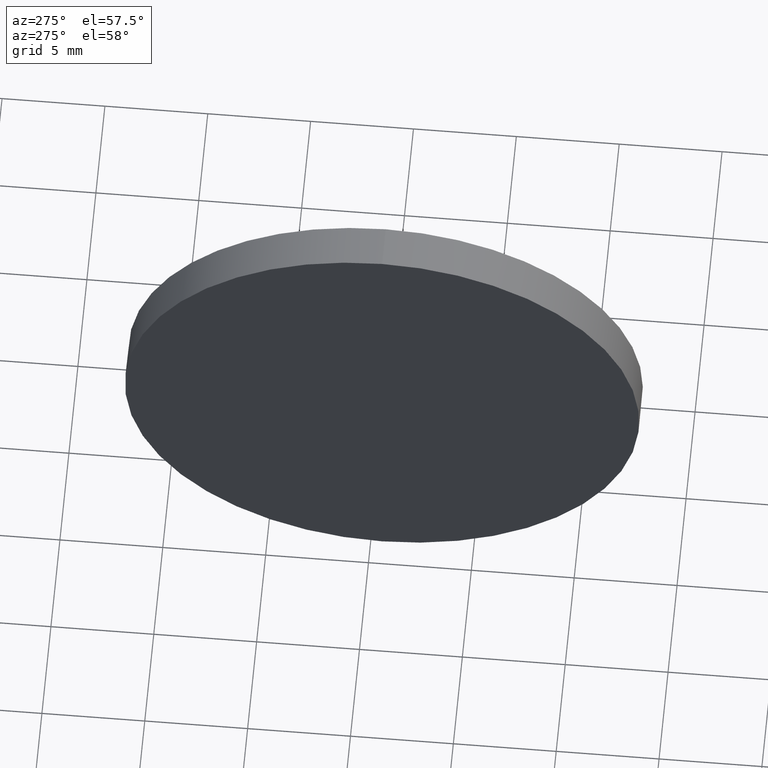
[diagram: clean part render]
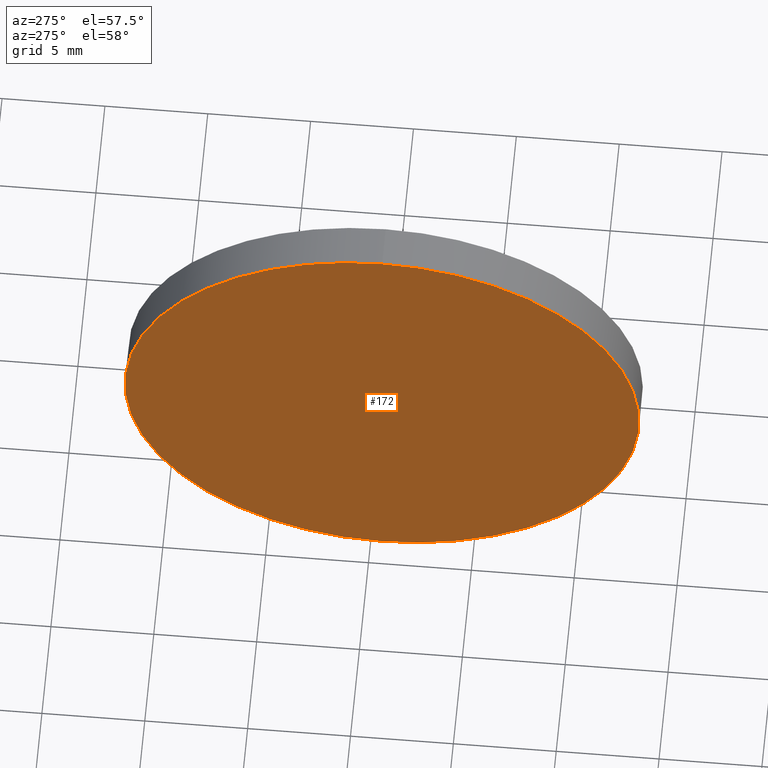
[diagram: same view with one face highlighted and labeled with its STEP entity id]
A machine part, auxiliary view. The second image highlights one B-rep face of the part: STEP entity #172.
In plain terms, the highlighted planar face has unit normal (1, 0, 0).
Its self-contained STEP definition (entity closure, byte-faithful):
#3 = ORIENTED_EDGE ( 'NONE', *, *, #88, .T. ) ;
#7 = ORIENTED_EDGE ( 'NONE', *, *, #28, .T. ) ;
#10 = PLANE ( 'NONE',  #51 ) ;
#18 = CARTESIAN_POINT ( 'NONE',  ( 340.9391285963631600, -50.57751368964579800, 0.0000000000000000000 ) ) ;
#26 = CARTESIAN_POINT ( 'NONE',  ( 340.9391285963631600, -50.57751368964579800, 0.0000000000000000000 ) ) ;
#28 = EDGE_CURVE ( 'NONE', #109, #103, #32, .T. ) ;
#32 = CIRCLE ( 'NONE', #107, 12.49999999999999600 ) ;
#38 = CARTESIAN_POINT ( 'NONE',  ( 340.9391285963631600, -50.57751368964579800, 12.49999999999999600 ) ) ;
#51 = AXIS2_PLACEMENT_3D ( 'NONE', #26, #81, #115 ) ;
#54 = DIRECTION ( 'NONE',  ( -1.000000000000000000, -0.0000000000000000000, -0.0000000000000000000 ) ) ;
#60 = DIRECTION ( 'NONE',  ( 0.0000000000000000000, 0.0000000000000000000, 1.000000000000000000 ) ) ;
#63 = DIRECTION ( 'NONE',  ( 0.0000000000000000000, 0.0000000000000000000, 1.000000000000000000 ) ) ;
#81 = DIRECTION ( 'NONE',  ( 1.000000000000000000, 0.0000000000000000000, 0.0000000000000000000 ) ) ;
#88 = EDGE_CURVE ( 'NONE', #103, #109, #152, .T. ) ;
#97 = FACE_OUTER_BOUND ( 'NONE', #179, .T. ) ;
#103 = VERTEX_POINT ( 'NONE', #38 ) ;
#107 = AXIS2_PLACEMENT_3D ( 'NONE', #155, #54, #60 ) ;
#109 = VERTEX_POINT ( 'NONE', #180 ) ;
#115 = DIRECTION ( 'NONE',  ( 0.0000000000000000000, 0.0000000000000000000, -1.000000000000000000 ) ) ;
#129 = AXIS2_PLACEMENT_3D ( 'NONE', #18, #153, #63 ) ;
#152 = CIRCLE ( 'NONE', #129, 12.49999999999999600 ) ;
#153 = DIRECTION ( 'NONE',  ( -1.000000000000000000, -0.0000000000000000000, -0.0000000000000000000 ) ) ;
#155 = CARTESIAN_POINT ( 'NONE',  ( 340.9391285963631600, -50.57751368964579800, 0.0000000000000000000 ) ) ;
#172 = ADVANCED_FACE ( 'NONE', ( #97 ), #10, .F. ) ;
#179 = EDGE_LOOP ( 'NONE', ( #3, #7 ) ) ;
#180 = CARTESIAN_POINT ( 'NONE',  ( 340.9391285963631600, -50.57751368964579800, -12.49999999999999600 ) ) ;